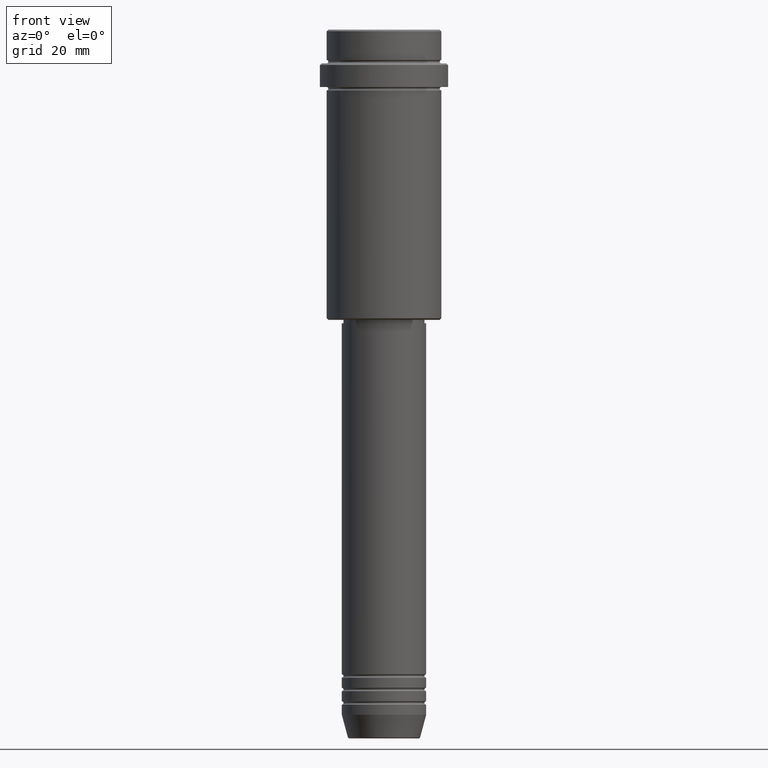
[diagram: clean part render]
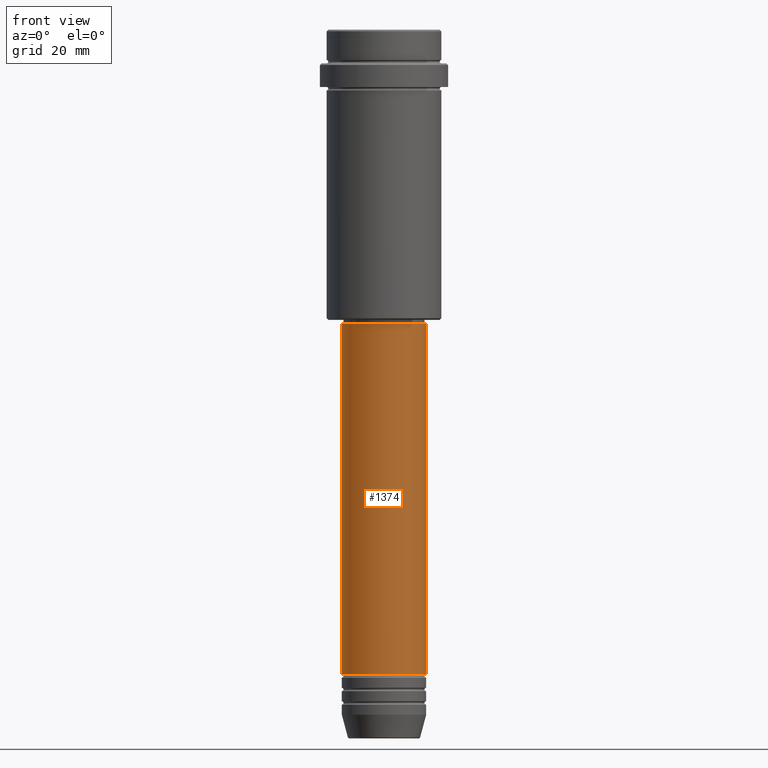
[diagram: same view with one face highlighted and labeled with its STEP entity id]
A machine part, front view. The second image highlights one B-rep face of the part: STEP entity #1374.
In plain terms, the highlighted cylindrical surface (partial cylindrical patch) has radius 12.5 mm, axis along (-0, -0, 1).
Its self-contained STEP definition (entity closure, byte-faithful):
#7 = ORIENTED_EDGE ( 'NONE', *, *, #1087, .F. ) ;
#13 = DIRECTION ( 'NONE',  ( 1.000000000000000000, 0.000000000000000000, 0.000000000000000000 ) ) ;
#16 = VERTEX_POINT ( 'NONE', #670 ) ;
#34 = CARTESIAN_POINT ( 'NONE',  ( -12.50000000000000000, 1.530808498934191521E-15, -87.00000000000000000 ) ) ;
#43 = DIRECTION ( 'NONE',  ( -0.000000000000000000, -0.000000000000000000, 1.000000000000000000 ) ) ;
#73 = VERTEX_POINT ( 'NONE', #1222 ) ;
#109 = ORIENTED_EDGE ( 'NONE', *, *, #607, .F. ) ;
#113 = CARTESIAN_POINT ( 'NONE',  ( 0.000000000000000000, 0.000000000000000000, -87.00000000000000000 ) ) ;
#140 = AXIS2_PLACEMENT_3D ( 'NONE', #444, #208, #13 ) ;
#143 = AXIS2_PLACEMENT_3D ( 'NONE', #641, #877, #963 ) ;
#145 = EDGE_CURVE ( 'NONE', #73, #16, #1381, .T. ) ;
#173 = AXIS2_PLACEMENT_3D ( 'NONE', #113, #541, #229 ) ;
#195 = VECTOR ( 'NONE', #43, 1000.000000000000000 ) ;
#204 = CARTESIAN_POINT ( 'NONE',  ( -12.50000000000000000, 1.530808498934191521E-15, 0.000000000000000000 ) ) ;
#208 = DIRECTION ( 'NONE',  ( -0.000000000000000000, -0.000000000000000000, 1.000000000000000000 ) ) ;
#229 = DIRECTION ( 'NONE',  ( 1.000000000000000000, 0.000000000000000000, 0.000000000000000000 ) ) ;
#367 = VERTEX_POINT ( 'NONE', #34 ) ;
#444 = CARTESIAN_POINT ( 'NONE',  ( 0.000000000000000000, 0.000000000000000000, 0.000000000000000000 ) ) ;
#530 = VECTOR ( 'NONE', #1126, 1000.000000000000000 ) ;
#541 = DIRECTION ( 'NONE',  ( -0.000000000000000000, -0.000000000000000000, 1.000000000000000000 ) ) ;
#607 = EDGE_CURVE ( 'NONE', #73, #367, #1177, .T. ) ;
#641 = CARTESIAN_POINT ( 'NONE',  ( 0.000000000000000000, 0.000000000000000000, -190.9999999999999147 ) ) ;
#661 = ORIENTED_EDGE ( 'NONE', *, *, #145, .T. ) ;
#670 = CARTESIAN_POINT ( 'NONE',  ( 12.50000000000000000, 0.000000000000000000, -190.9999999999999147 ) ) ;
#690 = LINE ( 'NONE', #799, #195 ) ;
#789 = CIRCLE ( 'NONE', #173, 12.50000000000000000 ) ;
#799 = CARTESIAN_POINT ( 'NONE',  ( 12.50000000000000000, 0.000000000000000000, 0.000000000000000000 ) ) ;
#877 = DIRECTION ( 'NONE',  ( -0.000000000000000000, -0.000000000000000000, 1.000000000000000000 ) ) ;
#948 = EDGE_CURVE ( 'NONE', #16, #1301, #690, .T. ) ;
#963 = DIRECTION ( 'NONE',  ( 1.000000000000000000, 0.000000000000000000, 0.000000000000000000 ) ) ;
#978 = CYLINDRICAL_SURFACE ( 'NONE', #140, 12.50000000000000000 ) ;
#1065 = CARTESIAN_POINT ( 'NONE',  ( 12.50000000000000000, 0.000000000000000000, -87.00000000000000000 ) ) ;
#1087 = EDGE_CURVE ( 'NONE', #367, #1301, #789, .T. ) ;
#1095 = EDGE_LOOP ( 'NONE', ( #109, #661, #1186, #7 ) ) ;
#1126 = DIRECTION ( 'NONE',  ( -0.000000000000000000, -0.000000000000000000, 1.000000000000000000 ) ) ;
#1177 = LINE ( 'NONE', #204, #530 ) ;
#1186 = ORIENTED_EDGE ( 'NONE', *, *, #948, .T. ) ;
#1222 = CARTESIAN_POINT ( 'NONE',  ( -12.50000000000000000, 1.530808498934191521E-15, -190.9999999999999147 ) ) ;
#1283 = FACE_OUTER_BOUND ( 'NONE', #1095, .T. ) ;
#1301 = VERTEX_POINT ( 'NONE', #1065 ) ;
#1374 = ADVANCED_FACE ( 'NONE', ( #1283 ), #978, .T. ) ;
#1381 = CIRCLE ( 'NONE', #143, 12.50000000000000000 ) ;